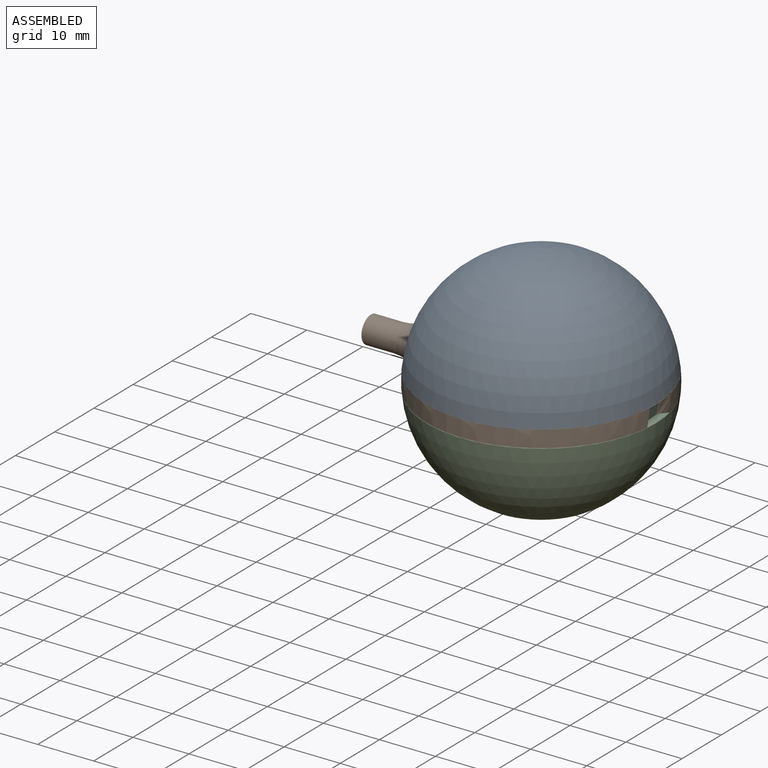
[diagram: assembled view]
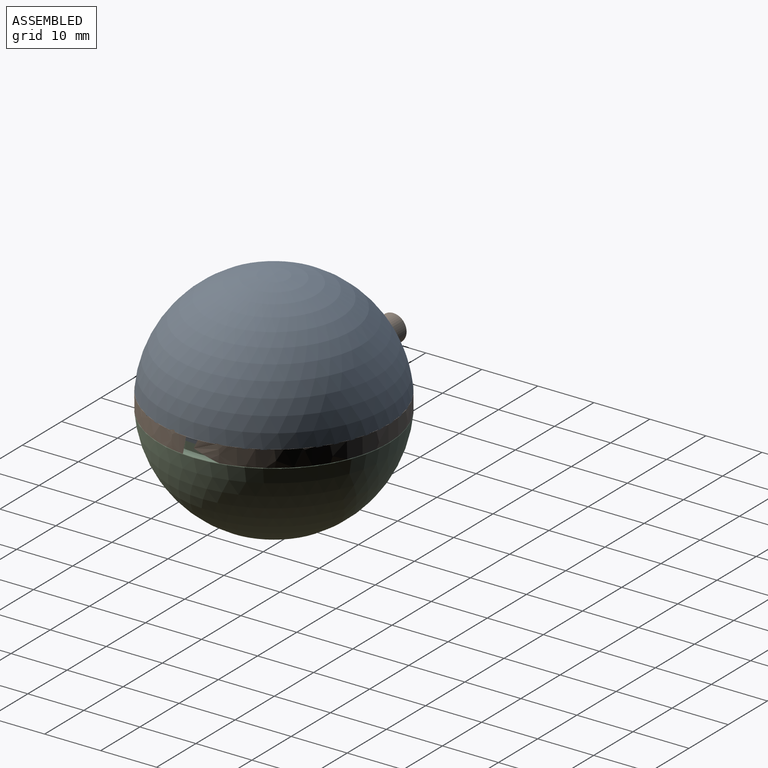
[diagram: assembled view, second angle]
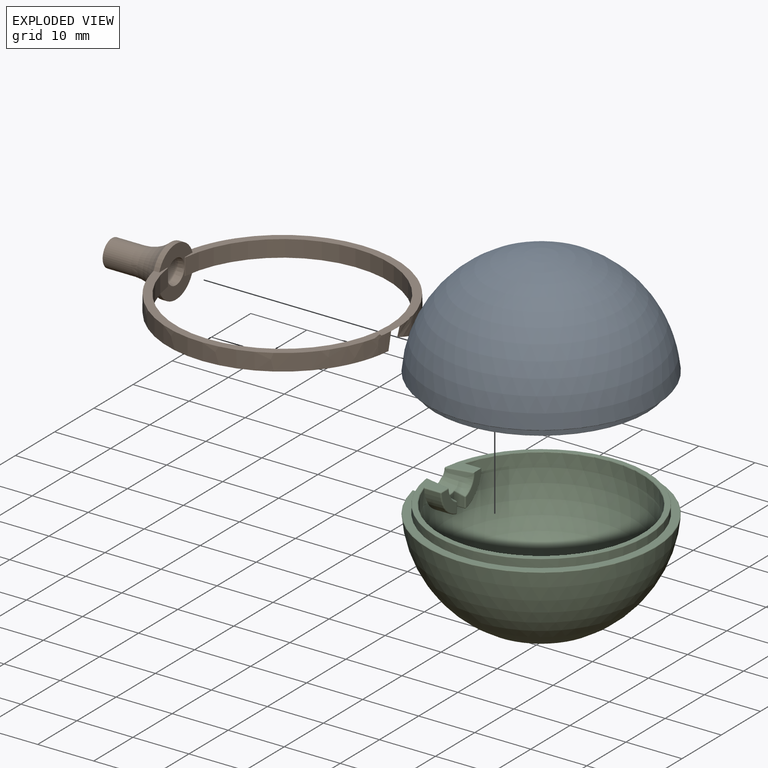
[diagram: exploded view]
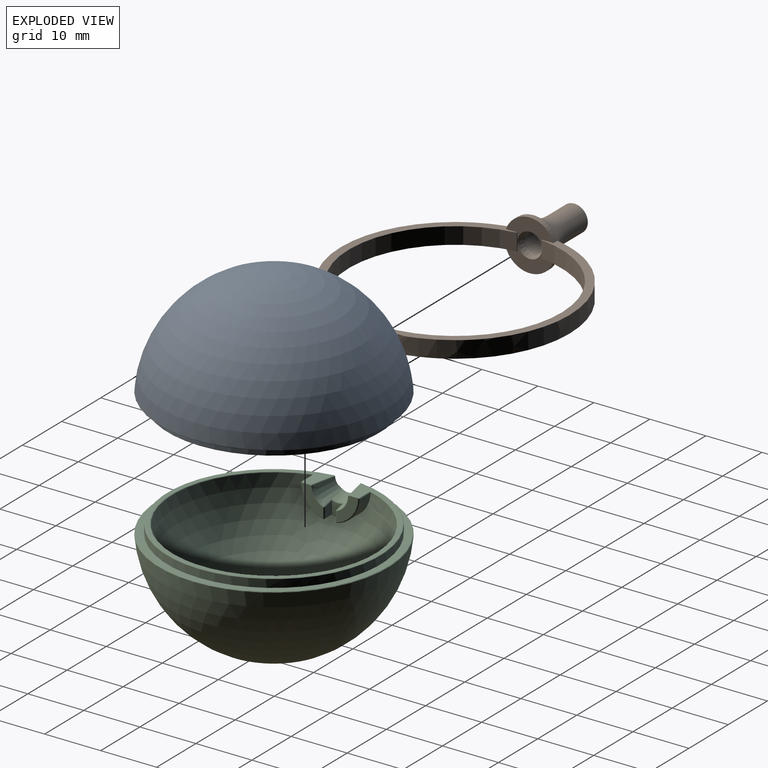
[diagram: exploded view, second angle]
ASSEMBLY  parts=3 mates=2
PART A: 53 faces, bbox 43.8x44.3x20.9 mm
  f0: cylinder r=5.2mm len=10.39mm, axis (1,0,0), area 39.5mm2, adj f1,f46,f47,f48,f49,f50,f51,f52
  f1: cylinder r=0.2mm len=2.96mm, axis (1,0,0), area 0.9mm2, adj f0,f2,f3,f44,f45,f52
  f2: torus R=18.1mm, axis (0,0,-1), area 16.1mm2, adj f1,f3,f51,f52
  f3: plane 37.8x37.64mm, normal (0,0,-1), area 102.2mm2, adj f1,f2,f4,f40,f41,f42,f43,f51
  f4: cylinder r=0.2mm len=1.64mm, axis (0,1,0), area 0.5mm2, adj f3,f5,f39,f44,f45
  f5: sphere r=0.2mm, area 0.1mm2, adj f4,f6,f43
  f6: torus R=3.36mm, axis (1,0,0), area 1mm2, adj f5,f7,f38,f39
  f7: cone r=2.43mm half-angle=12deg, axis (1,0,0), area 32.2mm2, adj f6,f8,f12,f21,f22,f23,f24,f25
  f8: bspline ~1.98x0.81mm, area 0.3mm2, adj f7,f9,f10,f25
  f9: bspline ~0.26x0.24mm, area 0mm2, adj f8,f10,f42,f43
  f10: cylinder r=19mm len=38mm, axis (0,0,-1), area 161.1mm2, adj f8,f9,f11,f24,f25,f42
  f11: bspline ~0.29x0.2mm, area 0mm2, adj f10,f24,f41,f42
  f12: bspline ~5.67x1.46mm, area 0.5mm2, adj f7,f13,f21,f38
  f13: plane 2.13x1.8mm, normal (0,-1,0), area 3.5mm2, adj f12,f14,f19,f21,f47
  f14: plane 2.24x2.01mm, normal (1,0,0), area 4.2mm2, adj f13,f15,f21,f47,f48,f49
  f15: plane 2.13x1.8mm, normal (0,1,0), area 3.5mm2, adj f14,f16,f21,f22,f49
  f16: cylinder r=0.2mm len=1.71mm, axis (0,0,1), area 0.5mm2, adj f15,f17,f18,f40
  f17: sphere r=0.2mm, area 0mm2, adj f16,f22,f23
  f18: sphere r=0.2mm, area 0.1mm2, adj f16,f49,f50
  f19: cylinder r=0.2mm len=1.71mm, axis (0,0,-1), area 0.5mm2, adj f13,f20,f38,f39
  f20: sphere r=0.2mm, area 0.1mm2, adj f19,f46,f47
  f21: torus R=2.94mm, axis (1,0,0), area 0.6mm2, adj f7,f12,f13,f14,f15,f22
  f22: bspline ~5.67x1.46mm, area 0.5mm2, adj f7,f15,f17,f21
  f23: torus R=3.36mm, axis (1,0,0), area 1mm2, adj f7,f17,f40,f41
  f24: bspline ~1.98x0.81mm, area 0.3mm2, adj f7,f10,f11,f25
  f25: plane 40.73x40.26mm, normal (0,0,-1), area 155mm2, adj f7,f8,f10,f24,f26,f34,f35,f36
  f26: torus R=20.34mm, axis (0,0,1), area 19.7mm2, adj f25,f27,f28,f29,f32,f33
  f27: bspline ~0.12x0.1mm, area 0mm2, adj f26,f33,f34
  f28: bspline ~0.12x0.1mm, area 0mm2, adj f26,f29,f36
  f29: bspline ~0.1x0.08mm, area 0mm2, adj f26,f28,f30,f31
  f30: torus R=4.55mm, axis (1,0,0), area 1mm2, adj f29,f31,f32,f33
  f31: cylinder r=4.5mm len=8.44mm, axis (-1,0,0), area 10.3mm2, adj f29,f30,f33,f34,f35,f36
  f32: sphere r=20.5mm, area 2433.4mm2, adj f26,f30
  f33: bspline ~0.1x0.08mm, area 0mm2, adj f26,f27,f30,f31
  f34: cylinder r=0.1mm len=0.93mm, axis (-1,0,0), area 0.1mm2, adj f25,f27,f31,f35
  f35: plane 8.63x3mm, normal (-1,0,0), area 16.8mm2, adj f25,f31,f34,f36,f37
  f36: cylinder r=0.1mm len=0.93mm, axis (-1,0,0), area 0.1mm2, adj f25,f28,f31,f35
  f37: torus R=2.25mm, axis (-1,0,0), area 0.3mm2, adj f7,f25,f35
  f38: sphere r=0.2mm, area 0mm2, adj f6,f12,f19
  f39: plane 4.65x3.8mm, normal (1,0,0), area 8.4mm2, adj f4,f6,f19,f46
  f40: plane 4.85x3.8mm, normal (1,0,0), area 8.8mm2, adj f3,f16,f23,f41,f50,f51
  f41: bspline ~23.19x5.12mm, area 1.4mm2, adj f3,f7,f11,f23,f40
  f42: torus R=18.9mm, axis (0,0,-1), area 17.9mm2, adj f3,f9,f10,f11
  f43: bspline ~23.19x5.12mm, area 1.3mm2, adj f3,f5,f7,f9
  f44: sphere r=0.2mm, area 0mm2, adj f1,f4,f46
  f45: sphere r=0.2mm, area 0mm2, adj f1,f4
  f46: torus R=5mm, axis (1,0,0), area 2.1mm2, adj f0,f20,f39,f44
  f47: cylinder r=0.2mm len=2mm, axis (1,0,0), area 0.7mm2, adj f0,f13,f14,f20,f48
  f48: torus R=5mm, axis (1,0,0), area 0.7mm2, adj f0,f14,f47,f49
  f49: cylinder r=0.2mm len=2mm, axis (1,0,0), area 0.7mm2, adj f0,f14,f15,f18,f48
  f50: torus R=5mm, axis (1,0,0), area 2.1mm2, adj f0,f18,f40,f51
  f51: cylinder r=0.2mm len=3.16mm, axis (1,0,0), area 1mm2, adj f0,f2,f3,f40,f50,f52
  f52: sphere r=18mm, area 1982.2mm2, adj f0,f1,f2,f51
PART B: 15 faces, bbox 52.6x42x42 mm
  f0: sphere r=20.5mm, area 360.9mm2, adj f1,f2,f11
  f1: plane 40.89x40.45mm, normal (0,-1,0), area 167.9mm2, adj f0,f3,f6,f8,f9,f10
  f2: plane 41.94x41.49mm, normal (0,1,0), area 167.9mm2, adj f0,f4,f5,f8,f9,f10
  f3: plane 8.49x4.5mm, normal (1,0,0), area 17.6mm2, adj f1,f6,f7,f8,f10
  f4: cylinder r=4.5mm len=8.49mm, axis (1,0,0), area 11.1mm2, adj f2,f5,f11
  f5: plane 8.49x4.5mm, normal (1,0,0), area 17.6mm2, adj f2,f4,f7,f8,f10
  f6: cylinder r=4.5mm len=8.49mm, axis (1,0,0), area 11.1mm2, adj f1,f3,f11
  f7: cone r=1.89mm half-angle=12deg, axis (1,0,0), area 18.5mm2, adj f3,f5,f14
  f8: plane 3x0.13mm, normal (0.21,0,-0.98), area 0.4mm2, adj f1,f2,f3,f5,f9
  f9: cylinder r=19mm len=38mm, axis (0,1,0), area 344.8mm2, adj f1,f2,f8,f10
  f10: plane 3x0.13mm, normal (0.21,0,0.98), area 0.4mm2, adj f1,f2,f3,f5,f9
  f11: torus R=10.37mm, axis (1,0,0), area 116mm2, adj f0,f4,f6,f12
  f12: cylinder r=2.39mm len=5mm, axis (1,0,0), area 75mm2, adj f11,f13
  f13: plane 4.77x4.77mm, normal (-1,0,0), area 6.7mm2, adj f12,f14
  f14: cylinder r=1.89mm len=10mm, axis (1,0,0), area 118.5mm2, adj f7,f13
PART C: same geometry as A
PLACE A t=(-10.8,-57.63,-3.03)mm
PLACE B rot(axis=(-1,0,0),90deg) t=(-10.8,-57.63,-2.83)mm
PLACE C rot(axis=(1,0,0),180deg) t=(-10.8,-57.63,-2.83)mm
MATE fastened C.f2 <-> A.f2  axis (0,0,1) through (-10.8,-57.63,-2.93)mm
MATE fastened B.f4 <-> C.f0  axis (1,0,0) through (-29.8,-57.63,-2.83)mm
